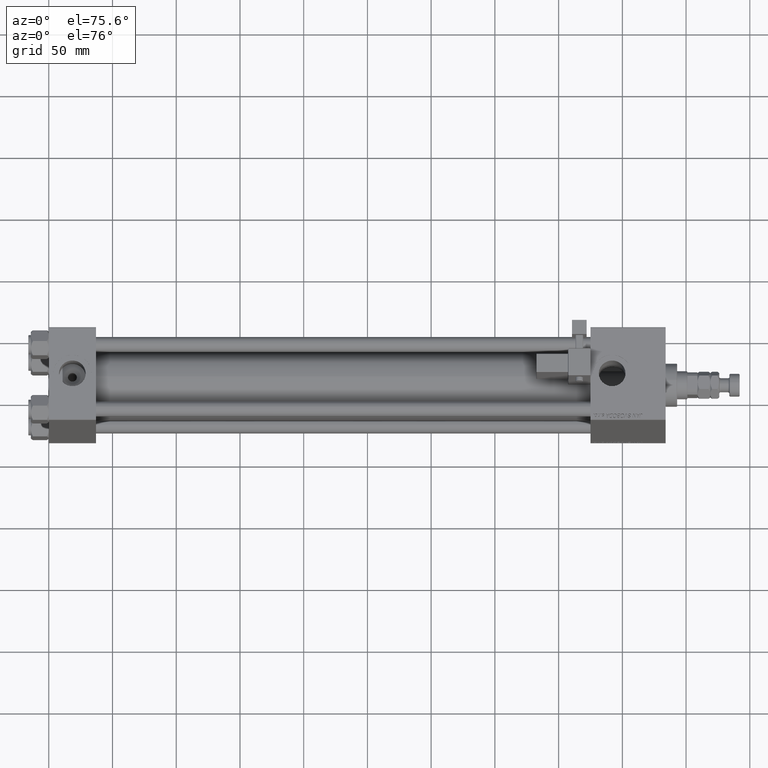
[diagram: clean part render]
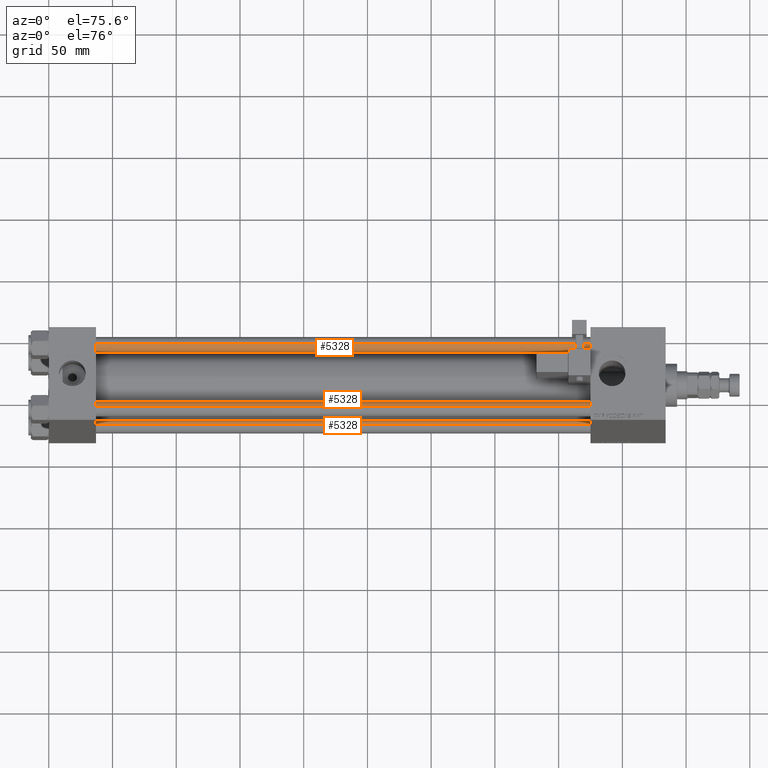
[diagram: same view with one multi-face feature highlighted, each face labeled with its STEP entity id]
A machine part, auxiliary view. The highlighted faces form ONE feature: a constant-radius fillet chain: 3 tangent blend faces with common blend radius 6 mm. The faces share edges in the B-rep.
Their STEP definitions:
[1] entity #5328 (Cylinder):
#3086 = DIRECTION ( 'NONE',  ( -0.000000000000000000, -0.000000000000000000, -1.000000000000000000 ) ) ;
#5328 = ADVANCED_FACE ( 'NONE', ( #52975 ), #32404, .T. ) ;
#5920 = VERTEX_POINT ( 'NONE', #26826 ) ;
#6085 = CARTESIAN_POINT ( 'NONE',  ( 6.000000000000000888, 7.347880794884119736E-16, 0.5000000000004445333 ) ) ;
#6477 = DIRECTION ( 'NONE',  ( 0.000000000000000000, 0.000000000000000000, -1.000000000000000000 ) ) ;
#8425 = EDGE_CURVE ( 'NONE', #5920, #19977, #20367, .T. ) ;
#8601 = VECTOR ( 'NONE', #24972, 1000.000000000000000 ) ;
#8641 = DIRECTION ( 'NONE',  ( -0.000000000000000000, -0.000000000000000000, -1.000000000000000000 ) ) ;
#9053 = LINE ( 'NONE', #33741, #8601 ) ;
#9743 = EDGE_CURVE ( 'NONE', #26473, #34521, #25639, .T. ) ;
#11297 = ORIENTED_EDGE ( 'NONE', *, *, #44470, .F. ) ;
#12935 = CARTESIAN_POINT ( 'NONE',  ( 0.000000000000000000, 0.000000000000000000, 0.5000000000004445333 ) ) ;
#14212 = AXIS2_PLACEMENT_3D ( 'NONE', #44011, #6477, #23194 ) ;
#15414 = CARTESIAN_POINT ( 'NONE',  ( 0.000000000000000000, 0.000000000000000000, 454.0000000000000000 ) ) ;
#15982 = AXIS2_PLACEMENT_3D ( 'NONE', #15414, #3086, #35719 ) ;
#19977 = VERTEX_POINT ( 'NONE', #38562 ) ;
#20367 = CIRCLE ( 'NONE', #14212, 6.000000000000000888 ) ;
#21001 = EDGE_CURVE ( 'NONE', #19977, #26473, #50031, .T. ) ;
#21067 = VECTOR ( 'NONE', #8641, 1000.000000000000000 ) ;
#22964 = ORIENTED_EDGE ( 'NONE', *, *, #8425, .T. ) ;
#23194 = DIRECTION ( 'NONE',  ( 1.000000000000000000, 0.000000000000000000, 0.000000000000000000 ) ) ;
#24972 = DIRECTION ( 'NONE',  ( -0.000000000000000000, -0.000000000000000000, -1.000000000000000000 ) ) ;
#25639 = CIRCLE ( 'NONE', #48420, 6.000000000000000888 ) ;
#26473 = VERTEX_POINT ( 'NONE', #36824 ) ;
#26826 = CARTESIAN_POINT ( 'NONE',  ( 6.000000000000000888, 7.347880794884119736E-16, 453.5000000000002842 ) ) ;
#27561 = ORIENTED_EDGE ( 'NONE', *, *, #21001, .T. ) ;
#29302 = EDGE_LOOP ( 'NONE', ( #11297, #22964, #27561, #33327 ) ) ;
#32404 = CYLINDRICAL_SURFACE ( 'NONE', #15982, 6.000000000000000888 ) ;
#33327 = ORIENTED_EDGE ( 'NONE', *, *, #9743, .T. ) ;
#33741 = CARTESIAN_POINT ( 'NONE',  ( 6.000000000000000888, 7.347880794884119736E-16, 454.0000000000000000 ) ) ;
#34521 = VERTEX_POINT ( 'NONE', #6085 ) ;
#35719 = DIRECTION ( 'NONE',  ( -1.000000000000000000, 0.000000000000000000, 0.000000000000000000 ) ) ;
#36824 = CARTESIAN_POINT ( 'NONE',  ( -6.000000000000000888, 0.000000000000000000, 0.5000000000004445333 ) ) ;
#38562 = CARTESIAN_POINT ( 'NONE',  ( -6.000000000000000888, 0.000000000000000000, 453.5000000000002842 ) ) ;
#42625 = CARTESIAN_POINT ( 'NONE',  ( -6.000000000000000888, 0.000000000000000000, 454.0000000000000000 ) ) ;
#42810 = DIRECTION ( 'NONE',  ( 1.000000000000000000, 0.000000000000000000, 0.000000000000000000 ) ) ;
#44011 = CARTESIAN_POINT ( 'NONE',  ( 0.000000000000000000, 0.000000000000000000, 453.5000000000002842 ) ) ;
#44470 = EDGE_CURVE ( 'NONE', #5920, #34521, #9053, .T. ) ;
#48420 = AXIS2_PLACEMENT_3D ( 'NONE', #12935, #51046, #42810 ) ;
#50031 = LINE ( 'NONE', #42625, #21067 ) ;
#51046 = DIRECTION ( 'NONE',  ( -0.000000000000000000, -0.000000000000000000, 1.000000000000000000 ) ) ;
#52975 = FACE_OUTER_BOUND ( 'NONE', #29302, .T. ) ;
[2] entity #5328 (Cylinder):
#3086 = DIRECTION ( 'NONE',  ( -0.000000000000000000, -0.000000000000000000, -1.000000000000000000 ) ) ;
#5328 = ADVANCED_FACE ( 'NONE', ( #52975 ), #32404, .T. ) ;
#5920 = VERTEX_POINT ( 'NONE', #26826 ) ;
#6085 = CARTESIAN_POINT ( 'NONE',  ( 6.000000000000000888, 7.347880794884119736E-16, 0.5000000000004445333 ) ) ;
#6477 = DIRECTION ( 'NONE',  ( 0.000000000000000000, 0.000000000000000000, -1.000000000000000000 ) ) ;
#8425 = EDGE_CURVE ( 'NONE', #5920, #19977, #20367, .T. ) ;
#8601 = VECTOR ( 'NONE', #24972, 1000.000000000000000 ) ;
#8641 = DIRECTION ( 'NONE',  ( -0.000000000000000000, -0.000000000000000000, -1.000000000000000000 ) ) ;
#9053 = LINE ( 'NONE', #33741, #8601 ) ;
#9743 = EDGE_CURVE ( 'NONE', #26473, #34521, #25639, .T. ) ;
#11297 = ORIENTED_EDGE ( 'NONE', *, *, #44470, .F. ) ;
#12935 = CARTESIAN_POINT ( 'NONE',  ( 0.000000000000000000, 0.000000000000000000, 0.5000000000004445333 ) ) ;
#14212 = AXIS2_PLACEMENT_3D ( 'NONE', #44011, #6477, #23194 ) ;
#15414 = CARTESIAN_POINT ( 'NONE',  ( 0.000000000000000000, 0.000000000000000000, 454.0000000000000000 ) ) ;
#15982 = AXIS2_PLACEMENT_3D ( 'NONE', #15414, #3086, #35719 ) ;
#19977 = VERTEX_POINT ( 'NONE', #38562 ) ;
#20367 = CIRCLE ( 'NONE', #14212, 6.000000000000000888 ) ;
#21001 = EDGE_CURVE ( 'NONE', #19977, #26473, #50031, .T. ) ;
#21067 = VECTOR ( 'NONE', #8641, 1000.000000000000000 ) ;
#22964 = ORIENTED_EDGE ( 'NONE', *, *, #8425, .T. ) ;
#23194 = DIRECTION ( 'NONE',  ( 1.000000000000000000, 0.000000000000000000, 0.000000000000000000 ) ) ;
#24972 = DIRECTION ( 'NONE',  ( -0.000000000000000000, -0.000000000000000000, -1.000000000000000000 ) ) ;
#25639 = CIRCLE ( 'NONE', #48420, 6.000000000000000888 ) ;
#26473 = VERTEX_POINT ( 'NONE', #36824 ) ;
#26826 = CARTESIAN_POINT ( 'NONE',  ( 6.000000000000000888, 7.347880794884119736E-16, 453.5000000000002842 ) ) ;
#27561 = ORIENTED_EDGE ( 'NONE', *, *, #21001, .T. ) ;
#29302 = EDGE_LOOP ( 'NONE', ( #11297, #22964, #27561, #33327 ) ) ;
#32404 = CYLINDRICAL_SURFACE ( 'NONE', #15982, 6.000000000000000888 ) ;
#33327 = ORIENTED_EDGE ( 'NONE', *, *, #9743, .T. ) ;
#33741 = CARTESIAN_POINT ( 'NONE',  ( 6.000000000000000888, 7.347880794884119736E-16, 454.0000000000000000 ) ) ;
#34521 = VERTEX_POINT ( 'NONE', #6085 ) ;
#35719 = DIRECTION ( 'NONE',  ( -1.000000000000000000, 0.000000000000000000, 0.000000000000000000 ) ) ;
#36824 = CARTESIAN_POINT ( 'NONE',  ( -6.000000000000000888, 0.000000000000000000, 0.5000000000004445333 ) ) ;
#38562 = CARTESIAN_POINT ( 'NONE',  ( -6.000000000000000888, 0.000000000000000000, 453.5000000000002842 ) ) ;
#42625 = CARTESIAN_POINT ( 'NONE',  ( -6.000000000000000888, 0.000000000000000000, 454.0000000000000000 ) ) ;
#42810 = DIRECTION ( 'NONE',  ( 1.000000000000000000, 0.000000000000000000, 0.000000000000000000 ) ) ;
#44011 = CARTESIAN_POINT ( 'NONE',  ( 0.000000000000000000, 0.000000000000000000, 453.5000000000002842 ) ) ;
#44470 = EDGE_CURVE ( 'NONE', #5920, #34521, #9053, .T. ) ;
#48420 = AXIS2_PLACEMENT_3D ( 'NONE', #12935, #51046, #42810 ) ;
#50031 = LINE ( 'NONE', #42625, #21067 ) ;
#51046 = DIRECTION ( 'NONE',  ( -0.000000000000000000, -0.000000000000000000, 1.000000000000000000 ) ) ;
#52975 = FACE_OUTER_BOUND ( 'NONE', #29302, .T. ) ;
[3] entity #5328 (Cylinder):
#3086 = DIRECTION ( 'NONE',  ( -0.000000000000000000, -0.000000000000000000, -1.000000000000000000 ) ) ;
#5328 = ADVANCED_FACE ( 'NONE', ( #52975 ), #32404, .T. ) ;
#5920 = VERTEX_POINT ( 'NONE', #26826 ) ;
#6085 = CARTESIAN_POINT ( 'NONE',  ( 6.000000000000000888, 7.347880794884119736E-16, 0.5000000000004445333 ) ) ;
#6477 = DIRECTION ( 'NONE',  ( 0.000000000000000000, 0.000000000000000000, -1.000000000000000000 ) ) ;
#8425 = EDGE_CURVE ( 'NONE', #5920, #19977, #20367, .T. ) ;
#8601 = VECTOR ( 'NONE', #24972, 1000.000000000000000 ) ;
#8641 = DIRECTION ( 'NONE',  ( -0.000000000000000000, -0.000000000000000000, -1.000000000000000000 ) ) ;
#9053 = LINE ( 'NONE', #33741, #8601 ) ;
#9743 = EDGE_CURVE ( 'NONE', #26473, #34521, #25639, .T. ) ;
#11297 = ORIENTED_EDGE ( 'NONE', *, *, #44470, .F. ) ;
#12935 = CARTESIAN_POINT ( 'NONE',  ( 0.000000000000000000, 0.000000000000000000, 0.5000000000004445333 ) ) ;
#14212 = AXIS2_PLACEMENT_3D ( 'NONE', #44011, #6477, #23194 ) ;
#15414 = CARTESIAN_POINT ( 'NONE',  ( 0.000000000000000000, 0.000000000000000000, 454.0000000000000000 ) ) ;
#15982 = AXIS2_PLACEMENT_3D ( 'NONE', #15414, #3086, #35719 ) ;
#19977 = VERTEX_POINT ( 'NONE', #38562 ) ;
#20367 = CIRCLE ( 'NONE', #14212, 6.000000000000000888 ) ;
#21001 = EDGE_CURVE ( 'NONE', #19977, #26473, #50031, .T. ) ;
#21067 = VECTOR ( 'NONE', #8641, 1000.000000000000000 ) ;
#22964 = ORIENTED_EDGE ( 'NONE', *, *, #8425, .T. ) ;
#23194 = DIRECTION ( 'NONE',  ( 1.000000000000000000, 0.000000000000000000, 0.000000000000000000 ) ) ;
#24972 = DIRECTION ( 'NONE',  ( -0.000000000000000000, -0.000000000000000000, -1.000000000000000000 ) ) ;
#25639 = CIRCLE ( 'NONE', #48420, 6.000000000000000888 ) ;
#26473 = VERTEX_POINT ( 'NONE', #36824 ) ;
#26826 = CARTESIAN_POINT ( 'NONE',  ( 6.000000000000000888, 7.347880794884119736E-16, 453.5000000000002842 ) ) ;
#27561 = ORIENTED_EDGE ( 'NONE', *, *, #21001, .T. ) ;
#29302 = EDGE_LOOP ( 'NONE', ( #11297, #22964, #27561, #33327 ) ) ;
#32404 = CYLINDRICAL_SURFACE ( 'NONE', #15982, 6.000000000000000888 ) ;
#33327 = ORIENTED_EDGE ( 'NONE', *, *, #9743, .T. ) ;
#33741 = CARTESIAN_POINT ( 'NONE',  ( 6.000000000000000888, 7.347880794884119736E-16, 454.0000000000000000 ) ) ;
#34521 = VERTEX_POINT ( 'NONE', #6085 ) ;
#35719 = DIRECTION ( 'NONE',  ( -1.000000000000000000, 0.000000000000000000, 0.000000000000000000 ) ) ;
#36824 = CARTESIAN_POINT ( 'NONE',  ( -6.000000000000000888, 0.000000000000000000, 0.5000000000004445333 ) ) ;
#38562 = CARTESIAN_POINT ( 'NONE',  ( -6.000000000000000888, 0.000000000000000000, 453.5000000000002842 ) ) ;
#42625 = CARTESIAN_POINT ( 'NONE',  ( -6.000000000000000888, 0.000000000000000000, 454.0000000000000000 ) ) ;
#42810 = DIRECTION ( 'NONE',  ( 1.000000000000000000, 0.000000000000000000, 0.000000000000000000 ) ) ;
#44011 = CARTESIAN_POINT ( 'NONE',  ( 0.000000000000000000, 0.000000000000000000, 453.5000000000002842 ) ) ;
#44470 = EDGE_CURVE ( 'NONE', #5920, #34521, #9053, .T. ) ;
#48420 = AXIS2_PLACEMENT_3D ( 'NONE', #12935, #51046, #42810 ) ;
#50031 = LINE ( 'NONE', #42625, #21067 ) ;
#51046 = DIRECTION ( 'NONE',  ( -0.000000000000000000, -0.000000000000000000, 1.000000000000000000 ) ) ;
#52975 = FACE_OUTER_BOUND ( 'NONE', #29302, .T. ) ;